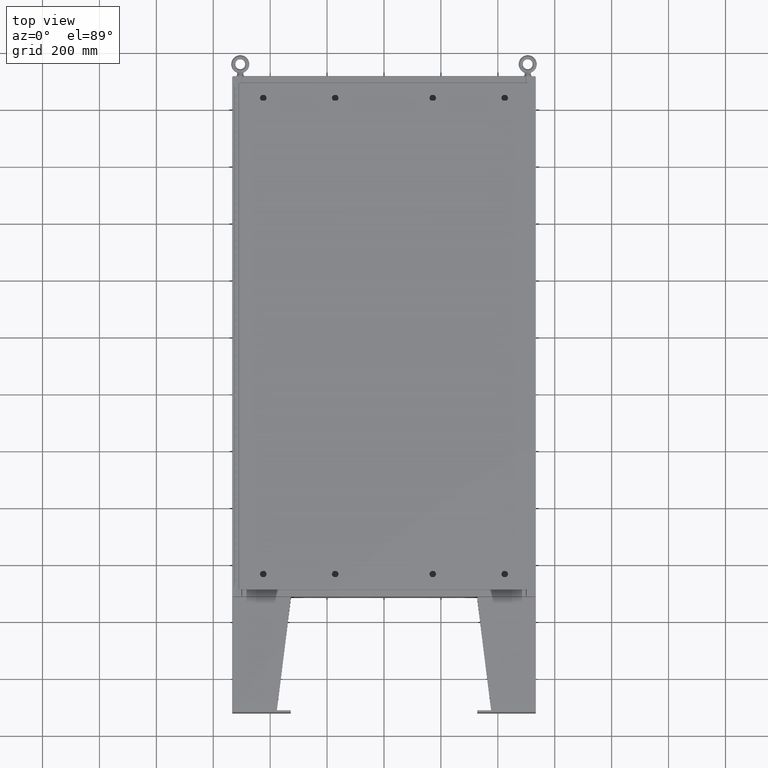
[diagram: clean part render]
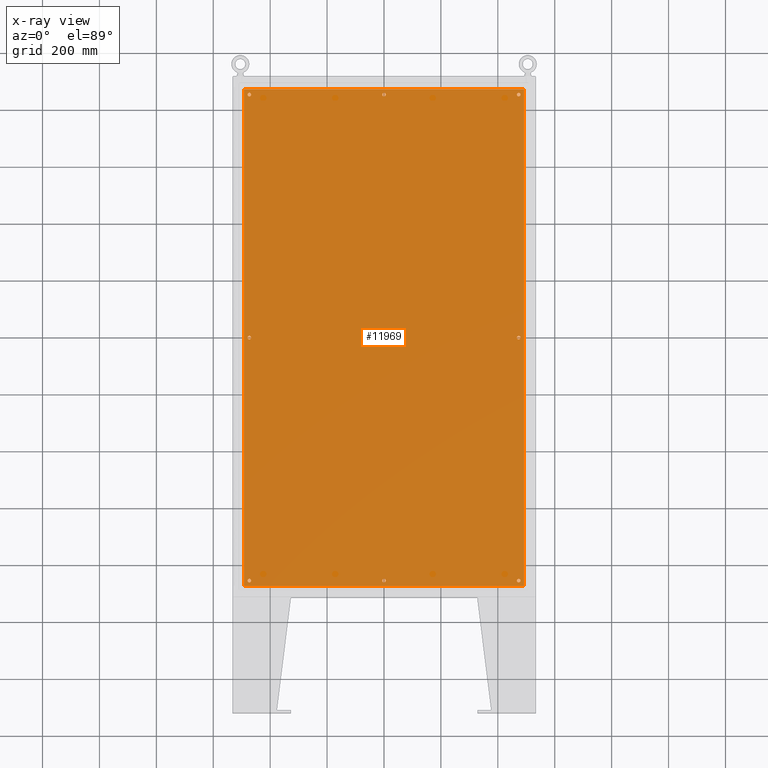
[diagram: x-ray — body ghosted, one internal face saturated and labeled with its STEP entity id]
A machine part, top view, then the same camera in x-ray: the body is ghosted and one INTERNAL B-rep face — a face not visible from any outside direction — is saturated and labeled: STEP entity #11969.
In plain terms, the highlighted planar face has unit normal (0, 0, -1).
Its self-contained STEP definition (entity closure, byte-faithful):
#148 = CARTESIAN_POINT ( 'NONE',  ( -19.38300000000000300, 34.38300000000000300, -0.1040000000000052800 ) ) ;
#200 = DIRECTION ( 'NONE',  ( -0.0000000000000000000, -0.0000000000000000000, 1.000000000000000000 ) ) ;
#675 = VERTEX_POINT ( 'NONE', #18640 ) ;
#773 = CARTESIAN_POINT ( 'NONE',  ( 19.38299999999999900, 34.38300000000000300, -0.1040000000000009100 ) ) ;
#1626 = ORIENTED_EDGE ( 'NONE', *, *, #9029, .T. ) ;
#2064 = ORIENTED_EDGE ( 'NONE', *, *, #68734, .T. ) ;
#2611 = LINE ( 'NONE', #24141, #44658 ) ;
#3973 = EDGE_CURVE ( 'NONE', #22064, #36692, #42273, .T. ) ;
#4451 = DIRECTION ( 'NONE',  ( -0.0000000000000000000, -0.0000000000000000000, 1.000000000000000000 ) ) ;
#4486 = LINE ( 'NONE', #53144, #46452 ) ;
#4503 = ORIENTED_EDGE ( 'NONE', *, *, #18099, .T. ) ;
#4684 = VERTEX_POINT ( 'NONE', #22670 ) ;
#5635 = EDGE_CURVE ( 'NONE', #41799, #21376, #23501, .T. ) ;
#5747 = DIRECTION ( 'NONE',  ( -0.0000000000000000000, -0.0000000000000000000, 1.000000000000000000 ) ) ;
#5759 = DIRECTION ( 'NONE',  ( -1.000000000000000000, 0.0000000000000000000, 0.0000000000000000000 ) ) ;
#5824 = CIRCLE ( 'NONE', #11279, 0.2499999999999987000 ) ;
#6106 = DIRECTION ( 'NONE',  ( -0.0000000000000000000, -0.0000000000000000000, 1.000000000000000000 ) ) ;
#7422 = ORIENTED_EDGE ( 'NONE', *, *, #56040, .T. ) ;
#7940 = FACE_BOUND ( 'NONE', #36655, .T. ) ;
#8171 = ORIENTED_EDGE ( 'NONE', *, *, #5635, .T. ) ;
#8276 = AXIS2_PLACEMENT_3D ( 'NONE', #63349, #8649, #63601 ) ;
#8649 = DIRECTION ( 'NONE',  ( 0.0000000000000000000, 0.0000000000000000000, -1.000000000000000000 ) ) ;
#9029 = EDGE_CURVE ( 'NONE', #59698, #675, #65208, .T. ) ;
#9391 = CARTESIAN_POINT ( 'NONE',  ( 19.38299999999999900, -34.38300000000000300, -0.1040000000000009100 ) ) ;
#9456 = DIRECTION ( 'NONE',  ( -1.000000000000000000, 0.0000000000000000000, 0.0000000000000000000 ) ) ;
#9650 = FACE_BOUND ( 'NONE', #60084, .T. ) ;
#10074 = CARTESIAN_POINT ( 'NONE',  ( -18.37500000000000700, -33.62500000000000000, -0.1039999999999999800 ) ) ;
#10802 = EDGE_LOOP ( 'NONE', ( #21396, #56533 ) ) ;
#11279 = AXIS2_PLACEMENT_3D ( 'NONE', #23011, #44311, #33321 ) ;
#11440 = FACE_BOUND ( 'NONE', #54575, .T. ) ;
#11954 = VERTEX_POINT ( 'NONE', #10074 ) ;
#11969 = ADVANCED_FACE ( 'NONE', ( #11440, #40660, #9650, #38963, #51659, #37251, #22482, #7940, #64614 ), #64083, .T. ) ;
#12311 = VERTEX_POINT ( 'NONE', #38574 ) ;
#12465 = AXIS2_PLACEMENT_3D ( 'NONE', #33111, #200, #38722 ) ;
#13212 = CARTESIAN_POINT ( 'NONE',  ( -0.2499999999999998600, 33.62500000000000000, -0.1039999999999999800 ) ) ;
#13395 = CIRCLE ( 'NONE', #36291, 0.2500000000000008900 ) ;
#13610 = CARTESIAN_POINT ( 'NONE',  ( 18.62500000000000700, -33.62500000000000000, -0.1039999999999999800 ) ) ;
#13819 = AXIS2_PLACEMENT_3D ( 'NONE', #13610, #55798, #50683 ) ;
#15407 = VERTEX_POINT ( 'NONE', #20191 ) ;
#16195 = CIRCLE ( 'NONE', #13819, 0.2499999999999987000 ) ;
#17200 = CIRCLE ( 'NONE', #36879, 0.2500000000000008900 ) ;
#17399 = AXIS2_PLACEMENT_3D ( 'NONE', #29131, #67644, #34783 ) ;
#17931 = DIRECTION ( 'NONE',  ( -1.000000000000000000, 0.0000000000000000000, 0.0000000000000000000 ) ) ;
#17968 = AXIS2_PLACEMENT_3D ( 'NONE', #62794, #38259, #5759 ) ;
#18099 = EDGE_CURVE ( 'NONE', #11954, #57177, #23765, .T. ) ;
#18478 = EDGE_CURVE ( 'NONE', #53114, #32321, #16195, .T. ) ;
#18640 = CARTESIAN_POINT ( 'NONE',  ( -18.37500000000000700, 33.62500000000000000, -0.1039999999999999800 ) ) ;
#20191 = CARTESIAN_POINT ( 'NONE',  ( -19.38300000000000300, -34.38300000000000300, -0.1040000000000009400 ) ) ;
#20590 = EDGE_LOOP ( 'NONE', ( #8171, #52236 ) ) ;
#20618 = DIRECTION ( 'NONE',  ( 1.000000000000000000, -0.0000000000000000000, -0.0000000000000000000 ) ) ;
#20653 = LINE ( 'NONE', #42528, #33647 ) ;
#21376 = VERTEX_POINT ( 'NONE', #52925 ) ;
#21396 = ORIENTED_EDGE ( 'NONE', *, *, #59933, .T. ) ;
#21941 = EDGE_CURVE ( 'NONE', #61508, #64450, #35310, .T. ) ;
#22064 = VERTEX_POINT ( 'NONE', #64045 ) ;
#22343 = VERTEX_POINT ( 'NONE', #148 ) ;
#22482 = FACE_BOUND ( 'NONE', #53802, .T. ) ;
#22620 = CIRCLE ( 'NONE', #55377, 0.2499999999999998600 ) ;
#22670 = CARTESIAN_POINT ( 'NONE',  ( 18.87500000000000400, 3.731924441611933200E-015, -0.1039999999999999800 ) ) ;
#23011 = CARTESIAN_POINT ( 'NONE',  ( -18.62500000000000700, -33.62500000000000000, -0.1039999999999999800 ) ) ;
#23383 = EDGE_CURVE ( 'NONE', #57177, #11954, #5824, .T. ) ;
#23497 = VERTEX_POINT ( 'NONE', #773 ) ;
#23501 = CIRCLE ( 'NONE', #17968, 0.2500000000000008900 ) ;
#23765 = CIRCLE ( 'NONE', #26045, 0.2499999999999987000 ) ;
#23828 = ORIENTED_EDGE ( 'NONE', *, *, #23383, .T. ) ;
#24095 = CIRCLE ( 'NONE', #52168, 0.2500000000000011700 ) ;
#24141 = CARTESIAN_POINT ( 'NONE',  ( -19.38300000000000300, 34.38300000000000300, -0.1040000000000052800 ) ) ;
#24230 = DIRECTION ( 'NONE',  ( -0.0000000000000000000, -0.0000000000000000000, 1.000000000000000000 ) ) ;
#24421 = CARTESIAN_POINT ( 'NONE',  ( 0.0000000000000000000, 33.62500000000000000, -0.1039999999999999800 ) ) ;
#26001 = CARTESIAN_POINT ( 'NONE',  ( 18.87500000000000400, -33.62500000000000000, -0.1039999999999999800 ) ) ;
#26045 = AXIS2_PLACEMENT_3D ( 'NONE', #65846, #52526, #9456 ) ;
#26631 = CARTESIAN_POINT ( 'NONE',  ( -18.62500000000000400, -8.298848852119578500E-016, -0.1039999999999999800 ) ) ;
#26888 = DIRECTION ( 'NONE',  ( -0.0000000000000000000, -0.0000000000000000000, 1.000000000000000000 ) ) ;
#27252 = DIRECTION ( 'NONE',  ( -1.000000000000000000, 0.0000000000000000000, 0.0000000000000000000 ) ) ;
#27275 = CARTESIAN_POINT ( 'NONE',  ( 18.87500000000000400, 33.62500000000000000, -0.1039999999999999800 ) ) ;
#28012 = EDGE_CURVE ( 'NONE', #22343, #15407, #2611, .T. ) ;
#28433 = EDGE_CURVE ( 'NONE', #21376, #41799, #17200, .T. ) ;
#29131 = CARTESIAN_POINT ( 'NONE',  ( 18.62500000000000400, 3.731924441611933200E-015, -0.1039999999999999800 ) ) ;
#29335 = CARTESIAN_POINT ( 'NONE',  ( 18.62500000000000700, -33.62500000000000000, -0.1039999999999999800 ) ) ;
#29657 = AXIS2_PLACEMENT_3D ( 'NONE', #66165, #64004, #27252 ) ;
#29787 = ORIENTED_EDGE ( 'NONE', *, *, #54674, .T. ) ;
#29820 = CARTESIAN_POINT ( 'NONE',  ( 0.0000000000000000000, -33.62500000000000000, -0.1039999999999999800 ) ) ;
#29986 = DIRECTION ( 'NONE',  ( -1.000000000000000000, 0.0000000000000000000, 0.0000000000000000000 ) ) ;
#30571 = ORIENTED_EDGE ( 'NONE', *, *, #28012, .F. ) ;
#30903 = EDGE_CURVE ( 'NONE', #54815, #23497, #65490, .T. ) ;
#31227 = EDGE_CURVE ( 'NONE', #23497, #22343, #4486, .T. ) ;
#32248 = CARTESIAN_POINT ( 'NONE',  ( 18.37500000000000700, -33.62500000000000000, -0.1039999999999999800 ) ) ;
#32249 = DIRECTION ( 'NONE',  ( -1.000000000000000000, 0.0000000000000000000, 0.0000000000000000000 ) ) ;
#32321 = VERTEX_POINT ( 'NONE', #26001 ) ;
#32565 = CARTESIAN_POINT ( 'NONE',  ( 0.2499999999999998600, 33.62500000000000000, -0.1039999999999999800 ) ) ;
#32777 = CARTESIAN_POINT ( 'NONE',  ( 18.62500000000000700, 33.62500000000000000, -0.1039999999999999800 ) ) ;
#33058 = ORIENTED_EDGE ( 'NONE', *, *, #30903, .F. ) ;
#33111 = CARTESIAN_POINT ( 'NONE',  ( 18.62500000000000700, 33.62500000000000000, -0.1039999999999999800 ) ) ;
#33321 = DIRECTION ( 'NONE',  ( -1.000000000000000000, 0.0000000000000000000, 0.0000000000000000000 ) ) ;
#33647 = VECTOR ( 'NONE', #20618, 39.37007874015748100 ) ;
#34783 = DIRECTION ( 'NONE',  ( -1.000000000000000000, 0.0000000000000000000, 0.0000000000000000000 ) ) ;
#34957 = ORIENTED_EDGE ( 'NONE', *, *, #40905, .T. ) ;
#35002 = DIRECTION ( 'NONE',  ( -1.000000000000000000, 0.0000000000000000000, 0.0000000000000000000 ) ) ;
#35310 = CIRCLE ( 'NONE', #52490, 0.2499999999999998600 ) ;
#35659 = EDGE_LOOP ( 'NONE', ( #61854, #29787 ) ) ;
#36103 = ORIENTED_EDGE ( 'NONE', *, *, #47473, .T. ) ;
#36291 = AXIS2_PLACEMENT_3D ( 'NONE', #37412, #4451, #42818 ) ;
#36655 = EDGE_LOOP ( 'NONE', ( #2064, #1626 ) ) ;
#36692 = VERTEX_POINT ( 'NONE', #69345 ) ;
#36879 = AXIS2_PLACEMENT_3D ( 'NONE', #26631, #65174, #32249 ) ;
#37067 = CIRCLE ( 'NONE', #17399, 0.2500000000000008900 ) ;
#37251 = FACE_BOUND ( 'NONE', #10802, .T. ) ;
#37412 = CARTESIAN_POINT ( 'NONE',  ( 18.62500000000000400, 3.731924441611933200E-015, -0.1039999999999999800 ) ) ;
#37968 = CARTESIAN_POINT ( 'NONE',  ( -18.87500000000001100, 33.62500000000000000, -0.1039999999999999800 ) ) ;
#38252 = AXIS2_PLACEMENT_3D ( 'NONE', #29335, #67859, #35002 ) ;
#38259 = DIRECTION ( 'NONE',  ( -0.0000000000000000000, -0.0000000000000000000, 1.000000000000000000 ) ) ;
#38372 = DIRECTION ( 'NONE',  ( -1.000000000000000000, 0.0000000000000000000, 0.0000000000000000000 ) ) ;
#38375 = DIRECTION ( 'NONE',  ( -1.000000000000000000, 0.0000000000000000000, 0.0000000000000000000 ) ) ;
#38574 = CARTESIAN_POINT ( 'NONE',  ( 18.37500000000000700, 33.62500000000000000, -0.1039999999999999800 ) ) ;
#38722 = DIRECTION ( 'NONE',  ( -1.000000000000000000, 0.0000000000000000000, 0.0000000000000000000 ) ) ;
#38723 = CARTESIAN_POINT ( 'NONE',  ( -18.62500000000000700, 33.62500000000000000, -0.1039999999999999800 ) ) ;
#38963 = FACE_BOUND ( 'NONE', #20590, .T. ) ;
#39340 = EDGE_CURVE ( 'NONE', #15407, #54815, #20653, .T. ) ;
#39635 = DIRECTION ( 'NONE',  ( 0.0000000000000000000, 1.000000000000000000, 0.0000000000000000000 ) ) ;
#39828 = CARTESIAN_POINT ( 'NONE',  ( 18.37500000000000400, 3.762540611590617000E-015, -0.1039999999999999800 ) ) ;
#40660 = FACE_BOUND ( 'NONE', #35659, .T. ) ;
#40905 = EDGE_CURVE ( 'NONE', #12311, #54989, #62838, .T. ) ;
#41799 = VERTEX_POINT ( 'NONE', #63698 ) ;
#42170 = DIRECTION ( 'NONE',  ( -1.000000000000000000, -0.0000000000000000000, -0.0000000000000000000 ) ) ;
#42273 = CIRCLE ( 'NONE', #48095, 0.2500000000000011700 ) ;
#42528 = CARTESIAN_POINT ( 'NONE',  ( -19.50000000000000000, -34.38300000000000300, -0.1040000000000009400 ) ) ;
#42818 = DIRECTION ( 'NONE',  ( -1.000000000000000000, 0.0000000000000000000, 0.0000000000000000000 ) ) ;
#43248 = CIRCLE ( 'NONE', #38252, 0.2499999999999987000 ) ;
#43321 = ORIENTED_EDGE ( 'NONE', *, *, #56980, .T. ) ;
#44117 = DIRECTION ( 'NONE',  ( -1.000000000000000000, 0.0000000000000000000, 0.0000000000000000000 ) ) ;
#44311 = DIRECTION ( 'NONE',  ( -0.0000000000000000000, -0.0000000000000000000, 1.000000000000000000 ) ) ;
#44658 = VECTOR ( 'NONE', #62595, 39.37007874015748100 ) ;
#45966 = EDGE_LOOP ( 'NONE', ( #4503, #23828 ) ) ;
#46452 = VECTOR ( 'NONE', #42170, 39.37007874015748100 ) ;
#47083 = VERTEX_POINT ( 'NONE', #39828 ) ;
#47105 = CARTESIAN_POINT ( 'NONE',  ( -18.87500000000000400, -33.62500000000000000, -0.1039999999999999800 ) ) ;
#47473 = EDGE_CURVE ( 'NONE', #4684, #47083, #13395, .T. ) ;
#48095 = AXIS2_PLACEMENT_3D ( 'NONE', #29820, #6106, #38372 ) ;
#49583 = ORIENTED_EDGE ( 'NONE', *, *, #56052, .T. ) ;
#50683 = DIRECTION ( 'NONE',  ( -1.000000000000000000, 0.0000000000000000000, 0.0000000000000000000 ) ) ;
#51659 = FACE_BOUND ( 'NONE', #45966, .T. ) ;
#52168 = AXIS2_PLACEMENT_3D ( 'NONE', #59833, #26888, #65412 ) ;
#52236 = ORIENTED_EDGE ( 'NONE', *, *, #28433, .T. ) ;
#52490 = AXIS2_PLACEMENT_3D ( 'NONE', #64530, #24230, #17931 ) ;
#52526 = DIRECTION ( 'NONE',  ( -0.0000000000000000000, -0.0000000000000000000, 1.000000000000000000 ) ) ;
#52925 = CARTESIAN_POINT ( 'NONE',  ( -18.87500000000000400, -7.992687152332741600E-016, -0.1039999999999999800 ) ) ;
#53114 = VERTEX_POINT ( 'NONE', #32248 ) ;
#53144 = CARTESIAN_POINT ( 'NONE',  ( 19.50000000000000000, 34.38299999999999600, -0.1040000000000009400 ) ) ;
#53348 = CIRCLE ( 'NONE', #59540, 0.2499999999999987000 ) ;
#53802 = EDGE_LOOP ( 'NONE', ( #49583, #34957 ) ) ;
#54567 = ORIENTED_EDGE ( 'NONE', *, *, #3973, .T. ) ;
#54575 = EDGE_LOOP ( 'NONE', ( #54567, #7422 ) ) ;
#54674 = EDGE_CURVE ( 'NONE', #64450, #61508, #22620, .T. ) ;
#54815 = VERTEX_POINT ( 'NONE', #9391 ) ;
#54870 = CARTESIAN_POINT ( 'NONE',  ( 19.38299999999999900, -34.38300000000000300, -0.1040000000000009100 ) ) ;
#54989 = VERTEX_POINT ( 'NONE', #27275 ) ;
#55377 = AXIS2_PLACEMENT_3D ( 'NONE', #24421, #62904, #29986 ) ;
#55798 = DIRECTION ( 'NONE',  ( -0.0000000000000000000, -0.0000000000000000000, 1.000000000000000000 ) ) ;
#56040 = EDGE_CURVE ( 'NONE', #36692, #22064, #24095, .T. ) ;
#56052 = EDGE_CURVE ( 'NONE', #54989, #12311, #53348, .T. ) ;
#56533 = ORIENTED_EDGE ( 'NONE', *, *, #18478, .T. ) ;
#56883 = AXIS2_PLACEMENT_3D ( 'NONE', #38723, #5747, #44117 ) ;
#56980 = EDGE_CURVE ( 'NONE', #47083, #4684, #37067, .T. ) ;
#57177 = VERTEX_POINT ( 'NONE', #47105 ) ;
#57791 = EDGE_LOOP ( 'NONE', ( #63374, #30571, #71293, #33058 ) ) ;
#59540 = AXIS2_PLACEMENT_3D ( 'NONE', #32777, #71195, #38375 ) ;
#59698 = VERTEX_POINT ( 'NONE', #37968 ) ;
#59833 = CARTESIAN_POINT ( 'NONE',  ( 0.0000000000000000000, -33.62500000000000000, -0.1039999999999999800 ) ) ;
#59933 = EDGE_CURVE ( 'NONE', #32321, #53114, #43248, .T. ) ;
#60084 = EDGE_LOOP ( 'NONE', ( #36103, #43321 ) ) ;
#61508 = VERTEX_POINT ( 'NONE', #32565 ) ;
#61854 = ORIENTED_EDGE ( 'NONE', *, *, #21941, .T. ) ;
#62595 = DIRECTION ( 'NONE',  ( 0.0000000000000000000, -1.000000000000000000, 0.0000000000000000000 ) ) ;
#62794 = CARTESIAN_POINT ( 'NONE',  ( -18.62500000000000400, -8.298848852119578500E-016, -0.1039999999999999800 ) ) ;
#62838 = CIRCLE ( 'NONE', #12465, 0.2499999999999987000 ) ;
#62904 = DIRECTION ( 'NONE',  ( -0.0000000000000000000, -0.0000000000000000000, 1.000000000000000000 ) ) ;
#63349 = CARTESIAN_POINT ( 'NONE',  ( 0.0000000000000000000, 0.0000000000000000000, -0.1039999999999999800 ) ) ;
#63374 = ORIENTED_EDGE ( 'NONE', *, *, #39340, .F. ) ;
#63601 = DIRECTION ( 'NONE',  ( -1.000000000000000000, 0.0000000000000000000, -0.0000000000000000000 ) ) ;
#63698 = CARTESIAN_POINT ( 'NONE',  ( -18.37500000000000400, -8.298848852119578500E-016, -0.1039999999999999800 ) ) ;
#63728 = VECTOR ( 'NONE', #39635, 39.37007874015748100 ) ;
#64004 = DIRECTION ( 'NONE',  ( -0.0000000000000000000, -0.0000000000000000000, 1.000000000000000000 ) ) ;
#64045 = CARTESIAN_POINT ( 'NONE',  ( 0.2500000000000011700, -33.62500000000000000, -0.1039999999999999800 ) ) ;
#64083 = PLANE ( 'NONE',  #8276 ) ;
#64450 = VERTEX_POINT ( 'NONE', #13212 ) ;
#64530 = CARTESIAN_POINT ( 'NONE',  ( 0.0000000000000000000, 33.62500000000000000, -0.1039999999999999800 ) ) ;
#64614 = FACE_OUTER_BOUND ( 'NONE', #57791, .T. ) ;
#64717 = CIRCLE ( 'NONE', #56883, 0.2500000000000008900 ) ;
#65174 = DIRECTION ( 'NONE',  ( -0.0000000000000000000, -0.0000000000000000000, 1.000000000000000000 ) ) ;
#65208 = CIRCLE ( 'NONE', #29657, 0.2500000000000008900 ) ;
#65412 = DIRECTION ( 'NONE',  ( -1.000000000000000000, 0.0000000000000000000, 0.0000000000000000000 ) ) ;
#65490 = LINE ( 'NONE', #54870, #63728 ) ;
#65846 = CARTESIAN_POINT ( 'NONE',  ( -18.62500000000000700, -33.62500000000000000, -0.1039999999999999800 ) ) ;
#66165 = CARTESIAN_POINT ( 'NONE',  ( -18.62500000000000700, 33.62500000000000000, -0.1039999999999999800 ) ) ;
#67644 = DIRECTION ( 'NONE',  ( -0.0000000000000000000, -0.0000000000000000000, 1.000000000000000000 ) ) ;
#67859 = DIRECTION ( 'NONE',  ( -0.0000000000000000000, -0.0000000000000000000, 1.000000000000000000 ) ) ;
#68734 = EDGE_CURVE ( 'NONE', #675, #59698, #64717, .T. ) ;
#69345 = CARTESIAN_POINT ( 'NONE',  ( -0.2500000000000011700, -33.62500000000000000, -0.1039999999999999800 ) ) ;
#71195 = DIRECTION ( 'NONE',  ( -0.0000000000000000000, -0.0000000000000000000, 1.000000000000000000 ) ) ;
#71293 = ORIENTED_EDGE ( 'NONE', *, *, #31227, .F. ) ;